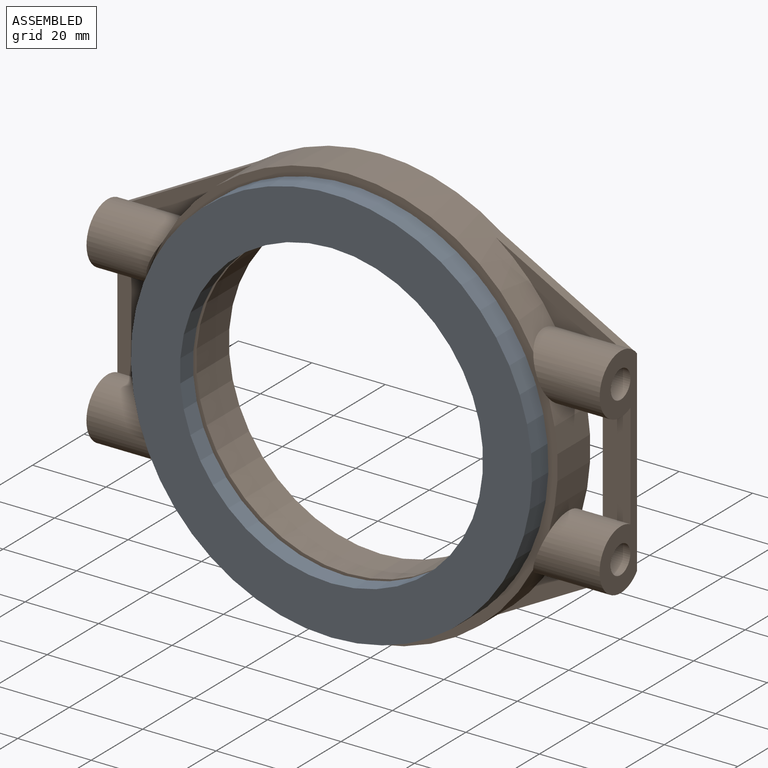
[diagram: assembled view]
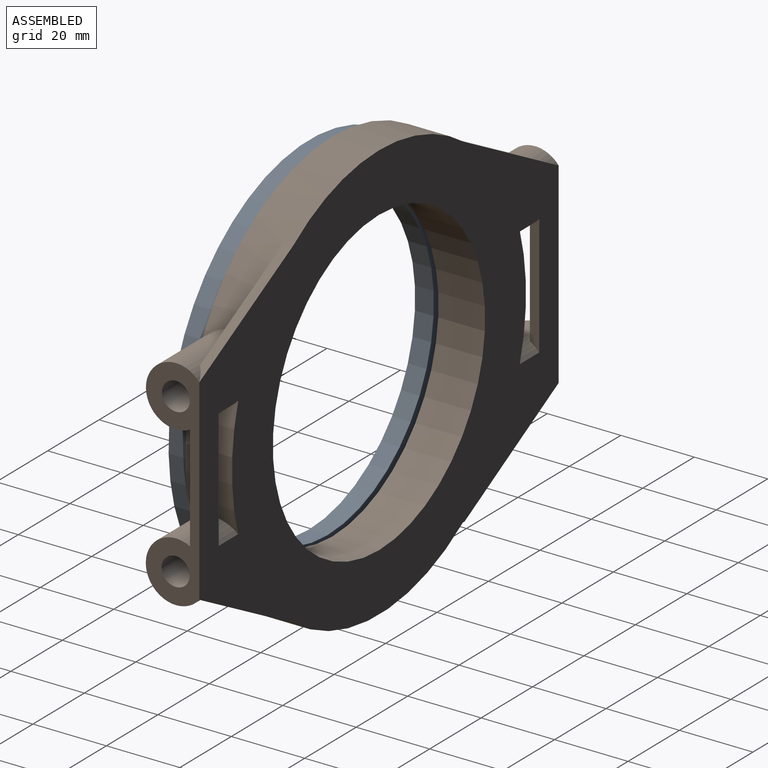
[diagram: assembled view, second angle]
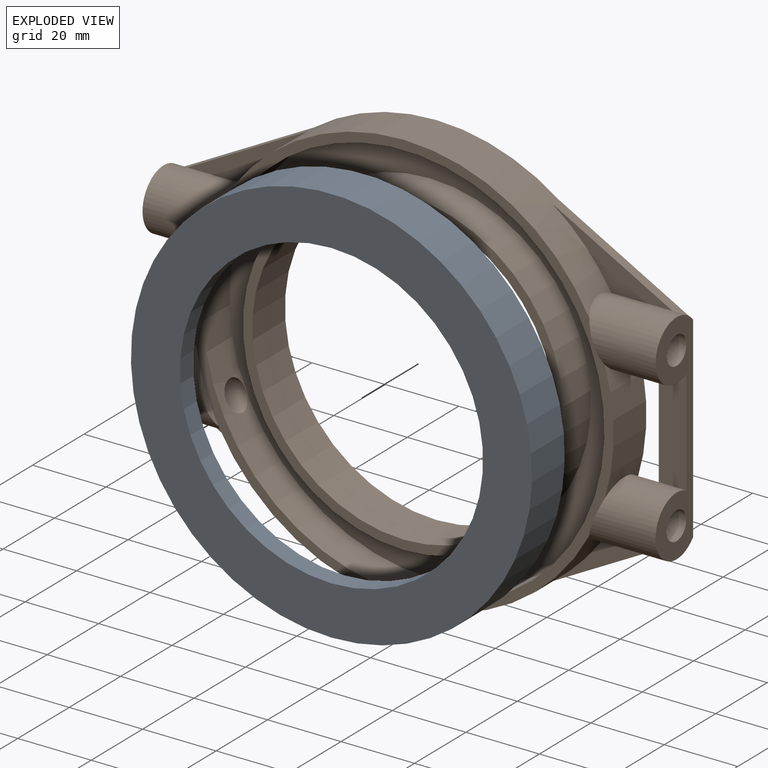
[diagram: exploded view]
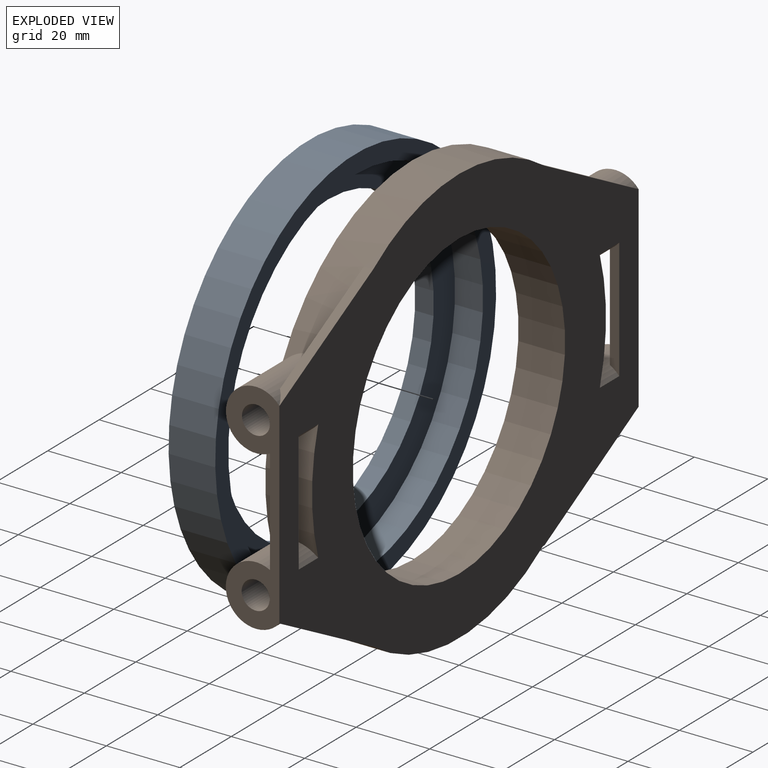
[diagram: exploded view, second angle]
ASSEMBLY  parts=2 mates=2
PART A: 6 faces, bbox 109.2x12.7x109.2 mm
  f0: cylinder r=54.61mm len=109.22mm, axis (0,-1,0), area 4357.7mm2, adj f1,f3
  f1: plane 109.22x109.22mm, normal (0,-1,0), area 4016.9mm2, adj f0,f5
  f2: cylinder r=49.53mm len=99.06mm, axis (0,-1,0), area 2371.4mm2, adj f3,f4
  f3: plane 109.22x109.22mm, normal (0,1,0), area 1662mm2, adj f0,f2
  f4: plane 99.06x99.06mm, normal (0,1,0), area 2354.9mm2, adj f2,f5
  f5: cylinder r=41.27mm len=82.55mm, axis (0,-1,0), area 1317.4mm2, adj f1,f4
PART B: 38 faces, bbox 139.7x14.6x114.3 mm
  f0: cylinder r=8.21mm len=21.09mm, axis (1,0,0), area 617.8mm2, adj f2,f6,f8,f12,f22,f34,f35,f36
  f1: cylinder r=8.18mm len=21.07mm, axis (1,0,0), area 616mm2, adj f4,f6,f8,f12,f21,f25,f26,f36
  f2: cylinder r=57.15mm len=100.93mm, axis (0,1,0), area 1381.6mm2, adj f0,f3,f11,f12,f31,f33,f34,f35
  f3: cylinder r=8.21mm len=21.09mm, axis (-1,0,0), area 617.6mm2, adj f2,f9,f12,f17,f18,f29,f30,f31
  f4: cylinder r=57.15mm len=100.99mm, axis (0,1,0), area 1384.5mm2, adj f1,f5,f11,f12,f25,f26,f27,f28
  f5: cylinder r=8.18mm len=21.07mm, axis (-1,0,0), area 616mm2, adj f4,f9,f12,f16,f17,f27,f28,f29
  f6: plane 59.57x14.58mm, normal (1,0,0), area 382.5mm2, adj f0,f1,f12,f23,f24,f37
  f7: cylinder r=54.61mm len=109.22mm, axis (0,1,0), area 3285.2mm2, adj f11,f14,f19,f20,f23,f24
  f8: cylinder r=57.15mm len=32.85mm, axis (0,1,0), area 367.4mm2, adj f0,f1,f11,f12
  f9: cylinder r=57.15mm len=32.85mm, axis (0,1,0), area 367.4mm2, adj f3,f5,f11,f12
  f10: plane 87.63x87.63mm, normal (0,-1,0), area 679mm2, adj f13,f15
  f11: plane 114.3x114.3mm, normal (0,-1,0), area 891.8mm2, adj f2,f4,f7,f8,f9,f16,f18,f21
  f12: plane 139.7x114.3mm, normal (0,1,0), area 6773.9mm2, adj f0,f1,f2,f3,f4,f5,f6,f8
  f13: cylinder r=41.27mm len=82.55mm, axis (0,-1,0), area 3293.6mm2, adj f10,f12
  f14: plane 109.22x109.22mm, normal (0,-1,0), area 3337.9mm2, adj f7,f15
  f15: cylinder r=43.81mm len=87.63mm, axis (0,-1,0), area 2797mm2, adj f10,f14
  f16: cylinder r=57.15mm len=10.35mm, axis (0,1,0), area 14.1mm2, adj f5,f11
  f17: plane 59.57x14.58mm, normal (-1,0,0), area 382.5mm2, adj f3,f5,f12,f19,f20,f29
  f18: cylinder r=57.15mm len=10.46mm, axis (0,1,0), area 14.5mm2, adj f3,f11
  f19: cylinder r=3.81mm len=21.48mm, axis (-1,0,0), area 472.9mm2, adj f7,f17
  f20: cylinder r=3.81mm len=21.51mm, axis (-1,0,0), area 473.4mm2, adj f7,f17
  f21: cylinder r=57.15mm len=10.35mm, axis (0,1,0), area 14.1mm2, adj f1,f11
  f22: cylinder r=57.15mm len=10.46mm, axis (0,1,0), area 14.5mm2, adj f0,f11
  f23: cylinder r=3.81mm len=21.48mm, axis (1,0,0), area 472.9mm2, adj f6,f7
  f24: cylinder r=3.81mm len=21.51mm, axis (1,0,0), area 473.4mm2, adj f6,f7
  f25: plane 32.69x17.64mm, normal (0,-1,0), area 126.5mm2, adj f1,f4,f26
  f26: plane 36.57x19.74mm, normal (0.47,0,0.88), area 99.2mm2, adj f1,f4,f12,f25
  f27: plane 32.69x17.64mm, normal (0,-1,0), area 126.5mm2, adj f4,f5,f28
  f28: plane 36.57x19.74mm, normal (-0.47,0,0.88), area 99.2mm2, adj f4,f5,f12,f27
  f29: plane 28.68x7.56mm, normal (0,-1,0), area 216.8mm2, adj f3,f5,f17,f30
  f30: plane 32.85x2.54mm, normal (1,0,0), area 77.4mm2, adj f3,f5,f12,f29
  f31: plane 33.44x18.06mm, normal (0,-1,0), area 135mm2, adj f2,f3,f32,f33
  f32: plane 36.57x20.14mm, normal (-0.48,0,-0.88), area 99.8mm2, adj f3,f12,f31,f33
  f33: plane 2.54x0.64mm, normal (0.01,0,-1), area 1.6mm2, adj f2,f12,f31,f32
  f34: plane 32.71x17.6mm, normal (0,-1,0), area 126.7mm2, adj f0,f2,f35
  f35: plane 36.57x19.68mm, normal (0.47,0,-0.88), area 99.2mm2, adj f0,f2,f12,f34
  f36: plane 32.85x2.54mm, normal (-1,0,0), area 77.4mm2, adj f0,f1,f12,f37
  f37: plane 28.68x7.56mm, normal (0,-1,0), area 216.8mm2, adj f0,f1,f6,f36
PLACE A t=(-6.71,-25.54,13.06)mm
PLACE B t=(-6.71,-6.49,13.06)mm
MATE cylindrical A.f0 <-> B.f2  axis (0,-1,0) through (-6.71,-19.19,13.06)mm
MATE planar A.f0 <-> B.f2  axis (0,1,0) through (-6.71,-12.84,13.06)mm
